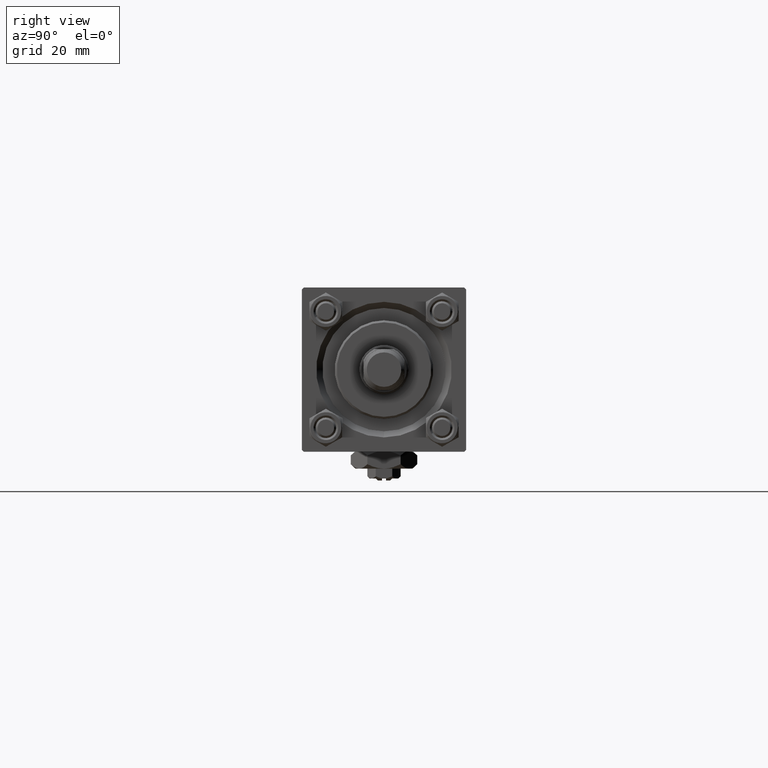
[diagram: clean part render]
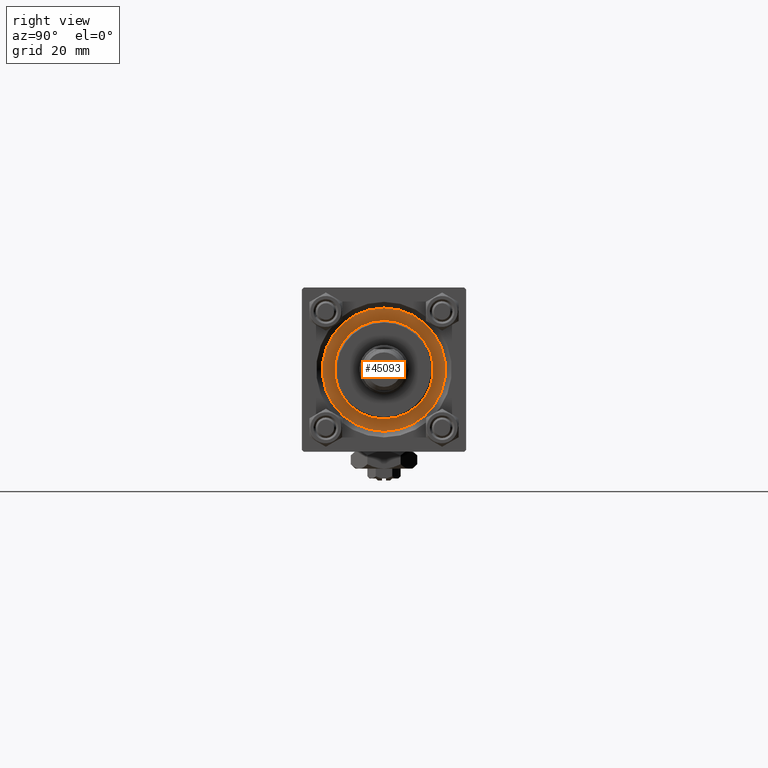
[diagram: same view with one face highlighted and labeled with its STEP entity id]
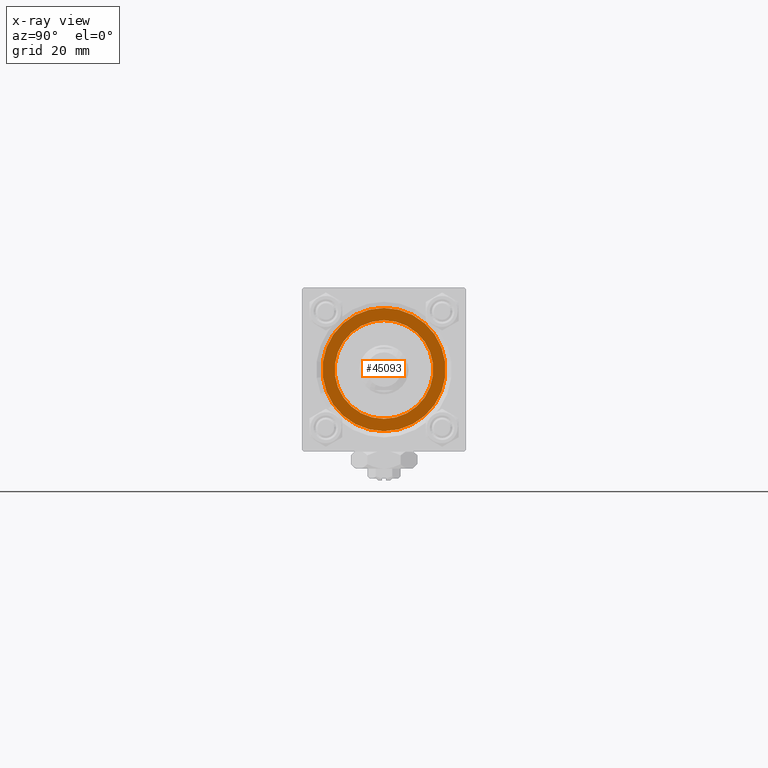
[diagram: x-ray of the same camera — body ghosted, the highlighted face saturated]
A machine part, right view. The second image highlights one B-rep face of the part: STEP entity #45093.
The next image is the same camera in x-ray: the body ghosted, the highlighted face saturated — about 0% of this face is hidden behind the body in this view.
In plain terms, the highlighted planar face has unit normal (1, 0, -0).
Its self-contained STEP definition (entity closure, byte-faithful):
#584 = AXIS2_PLACEMENT_3D ( 'NONE', #10159, #18103, #34217 ) ;
#623 = CIRCLE ( 'NONE', #584, 12.00000000000000178 ) ;
#994 = FACE_BOUND ( 'NONE', #6029, .T. ) ;
#2096 = EDGE_LOOP ( 'NONE', ( #19524, #50431 ) ) ;
#2566 = CARTESIAN_POINT ( 'NONE',  ( 0.000000000000000000, 0.000000000000000000, 28.69999999999999929 ) ) ;
#4281 = DIRECTION ( 'NONE',  ( 1.000000000000000000, 0.000000000000000000, 0.000000000000000000 ) ) ;
#4410 = EDGE_CURVE ( 'NONE', #25058, #13787, #623, .T. ) ;
#4454 = DIRECTION ( 'NONE',  ( 1.000000000000000000, 0.000000000000000000, -0.000000000000000000 ) ) ;
#5240 = DIRECTION ( 'NONE',  ( 0.000000000000000000, 0.000000000000000000, 1.000000000000000000 ) ) ;
#6029 = EDGE_LOOP ( 'NONE', ( #44251, #47217 ) ) ;
#7041 = AXIS2_PLACEMENT_3D ( 'NONE', #32303, #5240, #4281 ) ;
#7484 = EDGE_CURVE ( 'NONE', #13787, #25058, #51467, .T. ) ;
#10159 = CARTESIAN_POINT ( 'NONE',  ( 0.000000000000000000, 0.000000000000000000, 28.69999999999999929 ) ) ;
#13656 = CARTESIAN_POINT ( 'NONE',  ( 0.000000000000000000, 0.000000000000000000, 28.69999999999999929 ) ) ;
#13754 = VERTEX_POINT ( 'NONE', #41425 ) ;
#13787 = VERTEX_POINT ( 'NONE', #43235 ) ;
#17139 = CARTESIAN_POINT ( 'NONE',  ( 0.000000000000000000, 0.000000000000000000, 28.69999999999999929 ) ) ;
#18037 = AXIS2_PLACEMENT_3D ( 'NONE', #2566, #22155, #38266 ) ;
#18103 = DIRECTION ( 'NONE',  ( 0.000000000000000000, 0.000000000000000000, 1.000000000000000000 ) ) ;
#19524 = ORIENTED_EDGE ( 'NONE', *, *, #48247, .T. ) ;
#21105 = FACE_OUTER_BOUND ( 'NONE', #2096, .T. ) ;
#21387 = CIRCLE ( 'NONE', #18037, 15.00000000000000000 ) ;
#22155 = DIRECTION ( 'NONE',  ( 0.000000000000000000, 0.000000000000000000, 1.000000000000000000 ) ) ;
#24701 = AXIS2_PLACEMENT_3D ( 'NONE', #17139, #25349, #4454 ) ;
#25058 = VERTEX_POINT ( 'NONE', #36359 ) ;
#25349 = DIRECTION ( 'NONE',  ( 0.000000000000000000, 0.000000000000000000, 1.000000000000000000 ) ) ;
#29775 = DIRECTION ( 'NONE',  ( 0.000000000000000000, 0.000000000000000000, 1.000000000000000000 ) ) ;
#29841 = CIRCLE ( 'NONE', #7041, 15.00000000000000000 ) ;
#32303 = CARTESIAN_POINT ( 'NONE',  ( 0.000000000000000000, 0.000000000000000000, 28.69999999999999929 ) ) ;
#34217 = DIRECTION ( 'NONE',  ( 1.000000000000000000, 0.000000000000000000, 0.000000000000000000 ) ) ;
#36359 = CARTESIAN_POINT ( 'NONE',  ( -12.00000000000000178, 0.000000000000000000, 28.69999999999999929 ) ) ;
#36709 = PLANE ( 'NONE',  #24701 ) ;
#38186 = VERTEX_POINT ( 'NONE', #45447 ) ;
#38266 = DIRECTION ( 'NONE',  ( 1.000000000000000000, 0.000000000000000000, 0.000000000000000000 ) ) ;
#41425 = CARTESIAN_POINT ( 'NONE',  ( -15.00000000000000000, 0.000000000000000000, 28.69999999999999929 ) ) ;
#43235 = CARTESIAN_POINT ( 'NONE',  ( 12.00000000000000178, 1.469576158976824144E-15, 28.69999999999999929 ) ) ;
#44251 = ORIENTED_EDGE ( 'NONE', *, *, #4410, .F. ) ;
#45093 = ADVANCED_FACE ( 'NONE', ( #994, #21105 ), #36709, .T. ) ;
#45447 = CARTESIAN_POINT ( 'NONE',  ( 15.00000000000000000, 1.836970198721029589E-15, 28.69999999999999929 ) ) ;
#47217 = ORIENTED_EDGE ( 'NONE', *, *, #7484, .F. ) ;
#48147 = EDGE_CURVE ( 'NONE', #38186, #13754, #29841, .T. ) ;
#48247 = EDGE_CURVE ( 'NONE', #13754, #38186, #21387, .T. ) ;
#48944 = AXIS2_PLACEMENT_3D ( 'NONE', #13656, #29775, #49581 ) ;
#49581 = DIRECTION ( 'NONE',  ( 1.000000000000000000, 0.000000000000000000, 0.000000000000000000 ) ) ;
#50431 = ORIENTED_EDGE ( 'NONE', *, *, #48147, .T. ) ;
#51467 = CIRCLE ( 'NONE', #48944, 12.00000000000000178 ) ;